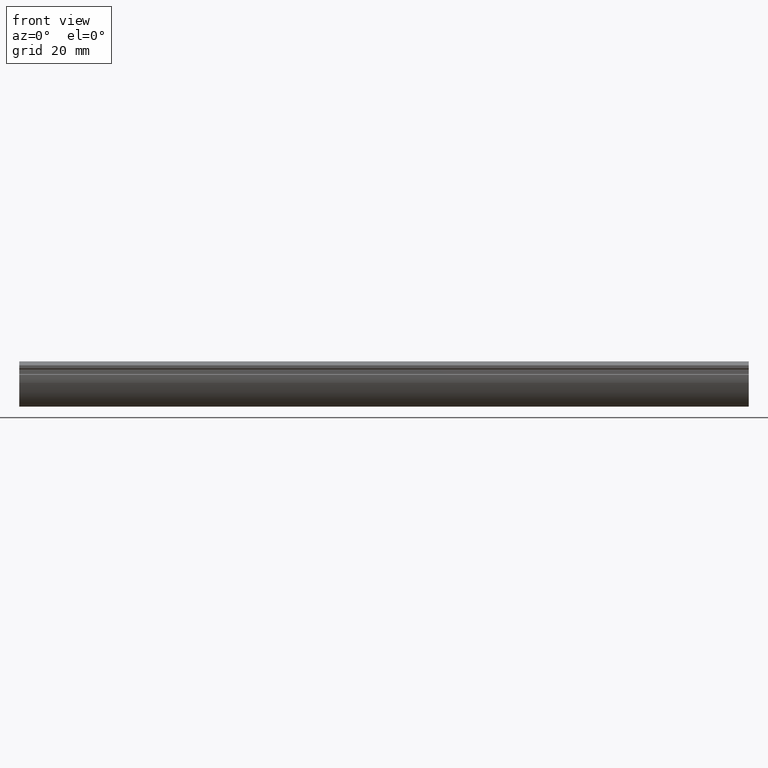
[diagram: clean part render]
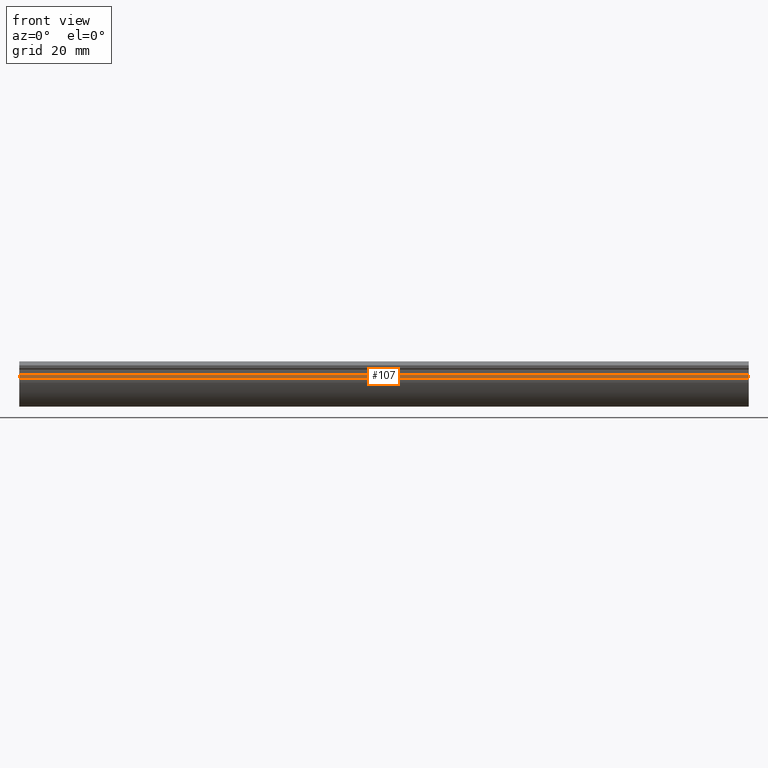
[diagram: same view with one face highlighted and labeled with its STEP entity id]
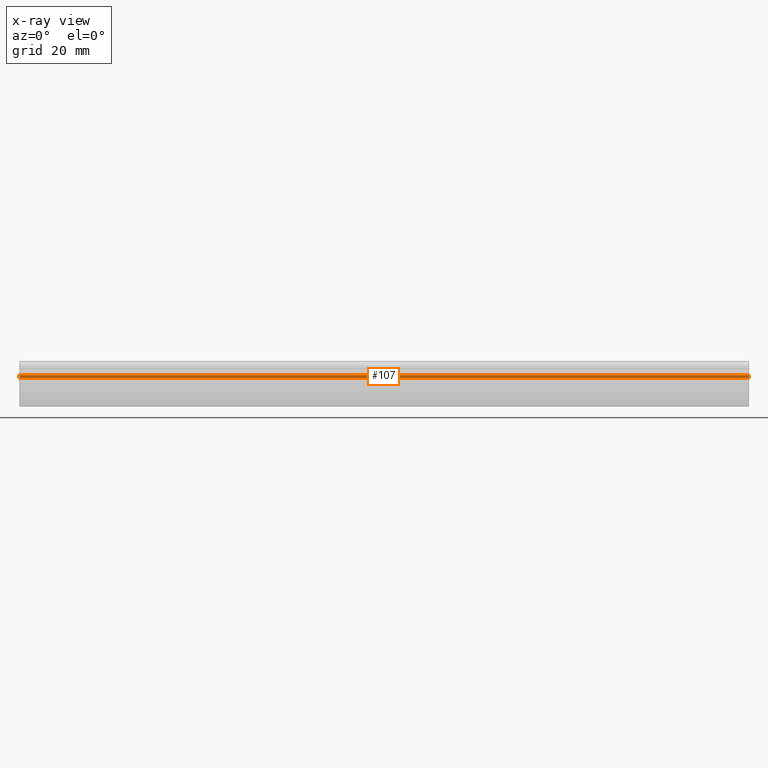
[diagram: x-ray of the same camera — body ghosted, the highlighted face saturated]
A machine part, front view. The second image highlights one B-rep face of the part: STEP entity #107.
The next image is the same camera in x-ray: the body ghosted, the highlighted face saturated — about 0% of this face is hidden behind the body in this view.
In plain terms, the highlighted planar face has unit normal (0, -1, 0).
Its self-contained STEP definition (entity closure, byte-faithful):
#49=CARTESIAN_POINT('',(0.0,-4.124504113862219,7.738753825486475));
#50=VERTEX_POINT('',#49);
#59=CARTESIAN_POINT('',(200.0,-4.124504113862219,7.738753825486475));
#60=VERTEX_POINT('',#59);
#68=CARTESIAN_POINT('',(200.0,-4.124504113862219,7.738753825486475));
#69=DIRECTION('',(-1.0,0.0,0.0));
#70=VECTOR('',#69,200.0);
#71=LINE('',#68,#70);
#72=EDGE_CURVE('',#60,#50,#71,.T.);
#77=CARTESIAN_POINT('',(-10.0,-4.124504113862219,7.694944270244813));
#78=DIRECTION('',(0.0,-1.0,0.0));
#79=DIRECTION('',(1.0,0.0,0.0));
#80=AXIS2_PLACEMENT_3D('',#77,#78,#79);
#81=PLANE('',#80);
#82=CARTESIAN_POINT('',(0.0,-4.124504113862219,8.614944930319709));
#83=VERTEX_POINT('',#82);
#84=CARTESIAN_POINT('',(0.0,-4.124504113862219,7.738753825486475));
#85=DIRECTION('',(0.0,0.0,1.0));
#86=VECTOR('',#85,0.876191104833234);
#87=LINE('',#84,#86);
#88=EDGE_CURVE('',#50,#83,#87,.T.);
#89=ORIENTED_EDGE('',*,*,#88,.F.);
#90=ORIENTED_EDGE('',*,*,#72,.F.);
#91=CARTESIAN_POINT('',(200.0,-4.124504113862219,8.614944930319709));
#92=VERTEX_POINT('',#91);
#93=CARTESIAN_POINT('',(200.0,-4.124504113862219,7.738753825486475));
#94=DIRECTION('',(0.0,0.0,1.0));
#95=VECTOR('',#94,0.876191104833234);
#96=LINE('',#93,#95);
#97=EDGE_CURVE('',#60,#92,#96,.T.);
#98=ORIENTED_EDGE('',*,*,#97,.T.);
#99=CARTESIAN_POINT('',(200.0,-4.124504113862219,8.614944930319709));
#100=DIRECTION('',(-1.0,0.0,0.0));
#101=VECTOR('',#100,200.0);
#102=LINE('',#99,#101);
#103=EDGE_CURVE('',#92,#83,#102,.T.);
#104=ORIENTED_EDGE('',*,*,#103,.T.);
#105=EDGE_LOOP('',(#89,#90,#98,#104));
#106=FACE_OUTER_BOUND('',#105,.T.);
#107=ADVANCED_FACE('',(#106),#81,.T.);